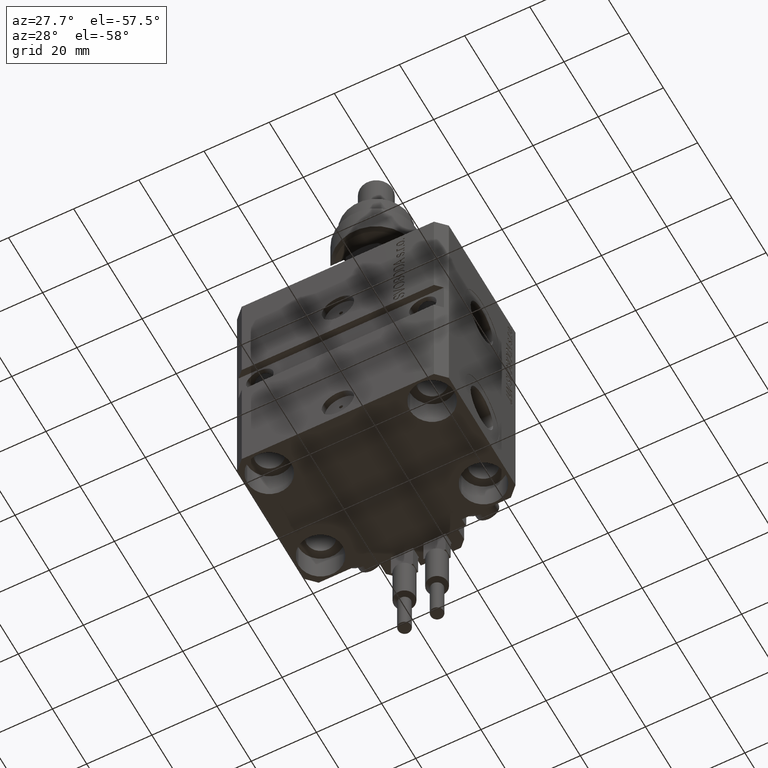
[diagram: clean part render]
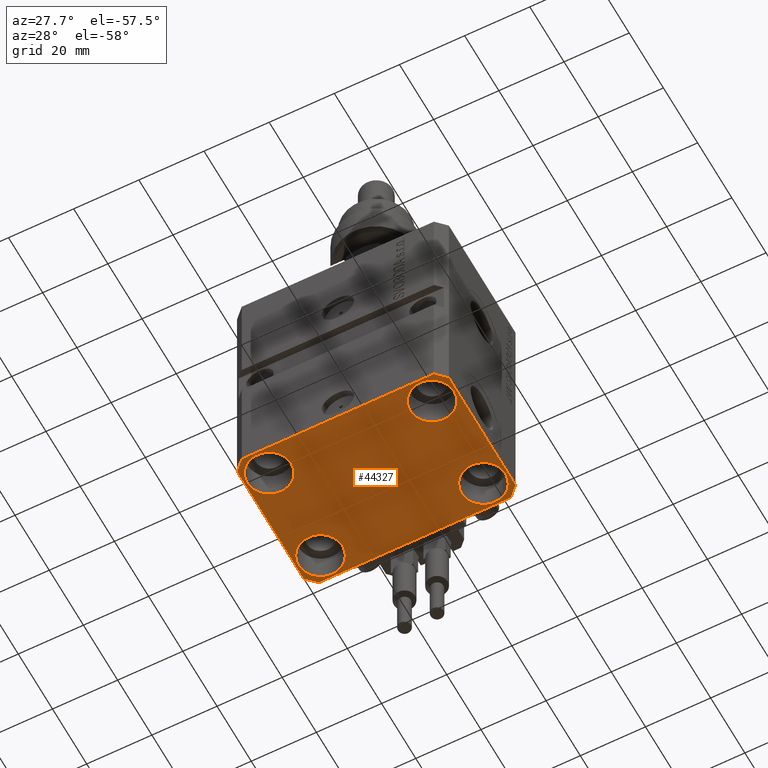
[diagram: same view with one face highlighted and labeled with its STEP entity id]
A machine part, auxiliary view. The second image highlights one B-rep face of the part: STEP entity #44327.
In plain terms, the highlighted planar face has unit normal (0, 0, 1).
Its self-contained STEP definition (entity closure, byte-faithful):
#97 = CARTESIAN_POINT ( 'NONE',  ( -29.49999999999650413, 22.49999999999949907, -77.00000000000000000 ) ) ;
#190 = VERTEX_POINT ( 'NONE', #23910 ) ;
#312 = ORIENTED_EDGE ( 'NONE', *, *, #16297, .T. ) ;
#667 = VERTEX_POINT ( 'NONE', #41809 ) ;
#1069 = EDGE_CURVE ( 'NONE', #29766, #47863, #27324, .T. ) ;
#1161 = FACE_BOUND ( 'NONE', #4159, .T. ) ;
#1185 = AXIS2_PLACEMENT_3D ( 'NONE', #48852, #5413, #33135 ) ;
#2863 = ORIENTED_EDGE ( 'NONE', *, *, #22836, .F. ) ;
#2881 = CARTESIAN_POINT ( 'NONE',  ( 29.49999999999650413, -22.49999999999949196, -77.00000000000000000 ) ) ;
#4029 = CARTESIAN_POINT ( 'NONE',  ( -29.49999999999650413, -22.49999999999949907, -77.00000000000000000 ) ) ;
#4159 = EDGE_LOOP ( 'NONE', ( #48491, #7473 ) ) ;
#4424 = ORIENTED_EDGE ( 'NONE', *, *, #6544, .F. ) ;
#4544 = VERTEX_POINT ( 'NONE', #5446 ) ;
#4622 = VERTEX_POINT ( 'NONE', #46284 ) ;
#4727 = CARTESIAN_POINT ( 'NONE',  ( -32.49999999999650413, 19.49999999999949907, -77.00000000000000000 ) ) ;
#4829 = CARTESIAN_POINT ( 'NONE',  ( -25.00000000000000355, 15.00000000000000000, -77.00000000000000000 ) ) ;
#5413 = DIRECTION ( 'NONE',  ( -0.000000000000000000, -0.000000000000000000, 1.000000000000000000 ) ) ;
#5446 = CARTESIAN_POINT ( 'NONE',  ( -31.75000000002253842, 15.00000000000000000, -77.00000000000000000 ) ) ;
#5874 = VERTEX_POINT ( 'NONE', #44387 ) ;
#6115 = VECTOR ( 'NONE', #27918, 1000.000000000000000 ) ;
#6375 = LINE ( 'NONE', #26389, #30472 ) ;
#6424 = CARTESIAN_POINT ( 'NONE',  ( 18.25000000004154543, 15.00000000000000888, -77.00000000000000000 ) ) ;
#6457 = VECTOR ( 'NONE', #23465, 1000.000000000000114 ) ;
#6544 = EDGE_CURVE ( 'NONE', #7953, #22977, #34615, .T. ) ;
#6757 = CARTESIAN_POINT ( 'NONE',  ( -18.24999999995845812, -15.00000000000000000, -77.00000000000000000 ) ) ;
#6761 = VERTEX_POINT ( 'NONE', #10192 ) ;
#6931 = CIRCLE ( 'NONE', #1185, 6.749999999977465137 ) ;
#7468 = AXIS2_PLACEMENT_3D ( 'NONE', #41468, #48685, #41964 ) ;
#7473 = ORIENTED_EDGE ( 'NONE', *, *, #45183, .T. ) ;
#7630 = CARTESIAN_POINT ( 'NONE',  ( -25.00000000000000355, 15.00000000000000000, -77.00000000000000000 ) ) ;
#7913 = ORIENTED_EDGE ( 'NONE', *, *, #1069, .F. ) ;
#7953 = VERTEX_POINT ( 'NONE', #31133 ) ;
#8506 = CIRCLE ( 'NONE', #42954, 6.749999999958452790 ) ;
#8804 = CARTESIAN_POINT ( 'NONE',  ( 31.74999999995845101, 15.00000000000000888, -77.00000000000000000 ) ) ;
#8856 = DIRECTION ( 'NONE',  ( 0.000000000000000000, 0.000000000000000000, 1.000000000000000000 ) ) ;
#8969 = EDGE_CURVE ( 'NONE', #6761, #31421, #28792, .T. ) ;
#9118 = CIRCLE ( 'NONE', #7468, 6.750000000041541881 ) ;
#9297 = CIRCLE ( 'NONE', #10141, 6.750000000022533087 ) ;
#9577 = CARTESIAN_POINT ( 'NONE',  ( -32.49999999999650413, 19.49999999999949907, -77.00000000000000000 ) ) ;
#9616 = FACE_BOUND ( 'NONE', #33229, .T. ) ;
#10141 = AXIS2_PLACEMENT_3D ( 'NONE', #4829, #15618, #28205 ) ;
#10192 = CARTESIAN_POINT ( 'NONE',  ( -31.75000000004154899, -15.00000000000000000, -77.00000000000000000 ) ) ;
#11876 = EDGE_CURVE ( 'NONE', #190, #29766, #13512, .T. ) ;
#12027 = DIRECTION ( 'NONE',  ( -0.000000000000000000, -0.000000000000000000, 1.000000000000000000 ) ) ;
#12299 = EDGE_CURVE ( 'NONE', #31421, #6761, #9118, .T. ) ;
#12491 = ORIENTED_EDGE ( 'NONE', *, *, #45289, .F. ) ;
#12571 = ORIENTED_EDGE ( 'NONE', *, *, #11876, .F. ) ;
#13183 = AXIS2_PLACEMENT_3D ( 'NONE', #17121, #28948, #33547 ) ;
#13512 = LINE ( 'NONE', #40258, #36124 ) ;
#14173 = EDGE_LOOP ( 'NONE', ( #12571, #12491, #4424, #33181, #2863, #46320, #17260, #7913 ) ) ;
#15487 = VECTOR ( 'NONE', #50332, 1000.000000000000000 ) ;
#15618 = DIRECTION ( 'NONE',  ( -0.000000000000000000, -0.000000000000000000, 1.000000000000000000 ) ) ;
#15851 = CARTESIAN_POINT ( 'NONE',  ( 29.49999999999650413, -22.49999999999949196, -77.00000000000000000 ) ) ;
#16208 = CARTESIAN_POINT ( 'NONE',  ( 18.25000000002253842, -15.00000000000000000, -77.00000000000000000 ) ) ;
#16297 = EDGE_CURVE ( 'NONE', #4622, #22002, #17473, .T. ) ;
#16566 = CARTESIAN_POINT ( 'NONE',  ( 0.000000000000000000, 0.000000000000000000, -77.00000000000000000 ) ) ;
#16572 = DIRECTION ( 'NONE',  ( -0.000000000000000000, -0.000000000000000000, 1.000000000000000000 ) ) ;
#17121 = CARTESIAN_POINT ( 'NONE',  ( -25.00000000000000355, -15.00000000000000000, -77.00000000000000000 ) ) ;
#17260 = ORIENTED_EDGE ( 'NONE', *, *, #49881, .F. ) ;
#17473 = CIRCLE ( 'NONE', #43759, 6.749999999977465137 ) ;
#17614 = EDGE_CURVE ( 'NONE', #4544, #667, #9297, .T. ) ;
#18547 = DIRECTION ( 'NONE',  ( 0.7071067811865483499, 0.7071067811865466846, 0.000000000000000000 ) ) ;
#19958 = CARTESIAN_POINT ( 'NONE',  ( 32.49999999999702993, 19.49999999999945999, -77.00000000000000000 ) ) ;
#20185 = CARTESIAN_POINT ( 'NONE',  ( 25.00000000000000355, -15.00000000000000000, -77.00000000000000000 ) ) ;
#20219 = DIRECTION ( 'NONE',  ( 1.000000000000000000, 0.000000000000000000, 0.000000000000000000 ) ) ;
#21235 = EDGE_LOOP ( 'NONE', ( #29555, #312 ) ) ;
#21538 = DIRECTION ( 'NONE',  ( 0.7071067811865474617, -0.7071067811865474617, 0.000000000000000000 ) ) ;
#22002 = VERTEX_POINT ( 'NONE', #16208 ) ;
#22836 = EDGE_CURVE ( 'NONE', #5874, #32120, #26893, .T. ) ;
#22881 = EDGE_CURVE ( 'NONE', #667, #4544, #34785, .T. ) ;
#22977 = VERTEX_POINT ( 'NONE', #19958 ) ;
#23106 = CARTESIAN_POINT ( 'NONE',  ( -29.49999999999650413, 22.49999999999949907, -77.00000000000000000 ) ) ;
#23465 = DIRECTION ( 'NONE',  ( -0.7071067811865474617, -0.7071067811865474617, 0.000000000000000000 ) ) ;
#23479 = LINE ( 'NONE', #4727, #26651 ) ;
#23910 = CARTESIAN_POINT ( 'NONE',  ( 29.49999999999707967, 22.49999999999951328, -77.00000000000000000 ) ) ;
#24052 = CIRCLE ( 'NONE', #48698, 6.749999999958452790 ) ;
#24527 = DIRECTION ( 'NONE',  ( 1.000000000000000000, 0.000000000000000000, -0.000000000000000000 ) ) ;
#25283 = PLANE ( 'NONE',  #49470 ) ;
#25529 = ORIENTED_EDGE ( 'NONE', *, *, #17614, .T. ) ;
#26021 = EDGE_LOOP ( 'NONE', ( #38340, #36004 ) ) ;
#26389 = CARTESIAN_POINT ( 'NONE',  ( -32.49999999999650413, -19.49999999999949907, -77.00000000000000000 ) ) ;
#26585 = AXIS2_PLACEMENT_3D ( 'NONE', #7630, #47220, #20219 ) ;
#26651 = VECTOR ( 'NONE', #31695, 1000.000000000000000 ) ;
#26759 = LINE ( 'NONE', #2881, #46510 ) ;
#26893 = LINE ( 'NONE', #4029, #6115 ) ;
#27191 = EDGE_CURVE ( 'NONE', #32120, #7953, #26759, .T. ) ;
#27319 = VECTOR ( 'NONE', #46613, 1000.000000000000000 ) ;
#27324 = LINE ( 'NONE', #97, #6457 ) ;
#27918 = DIRECTION ( 'NONE',  ( 1.000000000000000000, 1.176083712526788232E-16, 0.000000000000000000 ) ) ;
#28205 = DIRECTION ( 'NONE',  ( 1.000000000000000000, 0.000000000000000000, 0.000000000000000000 ) ) ;
#28275 = VERTEX_POINT ( 'NONE', #32200 ) ;
#28792 = CIRCLE ( 'NONE', #13183, 6.750000000041541881 ) ;
#28907 = CARTESIAN_POINT ( 'NONE',  ( 24.99999999999999645, 15.00000000000000888, -77.00000000000000000 ) ) ;
#28948 = DIRECTION ( 'NONE',  ( -0.000000000000000000, -0.000000000000000000, 1.000000000000000000 ) ) ;
#29555 = ORIENTED_EDGE ( 'NONE', *, *, #48385, .T. ) ;
#29766 = VERTEX_POINT ( 'NONE', #23106 ) ;
#30472 = VECTOR ( 'NONE', #21538, 1000.000000000000114 ) ;
#31133 = CARTESIAN_POINT ( 'NONE',  ( 32.49999999999651124, -19.49999999999949196, -77.00000000000000000 ) ) ;
#31421 = VERTEX_POINT ( 'NONE', #6757 ) ;
#31695 = DIRECTION ( 'NONE',  ( 0.000000000000000000, -1.000000000000000000, 0.000000000000000000 ) ) ;
#32120 = VERTEX_POINT ( 'NONE', #15851 ) ;
#32200 = CARTESIAN_POINT ( 'NONE',  ( -32.49999999999650413, -19.49999999999949907, -77.00000000000000000 ) ) ;
#32483 = FACE_OUTER_BOUND ( 'NONE', #14173, .T. ) ;
#33135 = DIRECTION ( 'NONE',  ( 1.000000000000000000, 0.000000000000000000, 0.000000000000000000 ) ) ;
#33181 = ORIENTED_EDGE ( 'NONE', *, *, #27191, .F. ) ;
#33229 = EDGE_LOOP ( 'NONE', ( #25529, #35454 ) ) ;
#33253 = DIRECTION ( 'NONE',  ( 1.000000000000000000, 0.000000000000000000, 0.000000000000000000 ) ) ;
#33547 = DIRECTION ( 'NONE',  ( 1.000000000000000000, 0.000000000000000000, 0.000000000000000000 ) ) ;
#33995 = CARTESIAN_POINT ( 'NONE',  ( 32.49999999999702993, 19.49999999999945999, -77.00000000000000000 ) ) ;
#34423 = VERTEX_POINT ( 'NONE', #6424 ) ;
#34615 = LINE ( 'NONE', #34872, #15487 ) ;
#34785 = CIRCLE ( 'NONE', #26585, 6.750000000022533087 ) ;
#34872 = CARTESIAN_POINT ( 'NONE',  ( 32.49999999999651124, -19.49999999999949196, -77.00000000000000000 ) ) ;
#35454 = ORIENTED_EDGE ( 'NONE', *, *, #22881, .T. ) ;
#36004 = ORIENTED_EDGE ( 'NONE', *, *, #12299, .T. ) ;
#36124 = VECTOR ( 'NONE', #44380, 1000.000000000000000 ) ;
#36331 = FACE_BOUND ( 'NONE', #26021, .T. ) ;
#38340 = ORIENTED_EDGE ( 'NONE', *, *, #8969, .T. ) ;
#39967 = DIRECTION ( 'NONE',  ( 1.000000000000000000, 0.000000000000000000, 0.000000000000000000 ) ) ;
#40258 = CARTESIAN_POINT ( 'NONE',  ( 29.49999999999707967, 22.49999999999951328, -77.00000000000000000 ) ) ;
#40466 = FACE_BOUND ( 'NONE', #21235, .T. ) ;
#41468 = CARTESIAN_POINT ( 'NONE',  ( -25.00000000000000355, -15.00000000000000000, -77.00000000000000000 ) ) ;
#41740 = LINE ( 'NONE', #33995, #27319 ) ;
#41809 = CARTESIAN_POINT ( 'NONE',  ( -18.24999999997747224, 15.00000000000000000, -77.00000000000000000 ) ) ;
#41964 = DIRECTION ( 'NONE',  ( 1.000000000000000000, 0.000000000000000000, 0.000000000000000000 ) ) ;
#41993 = EDGE_CURVE ( 'NONE', #28275, #5874, #6375, .T. ) ;
#42954 = AXIS2_PLACEMENT_3D ( 'NONE', #47266, #12027, #47515 ) ;
#43759 = AXIS2_PLACEMENT_3D ( 'NONE', #20185, #16572, #39967 ) ;
#44327 = ADVANCED_FACE ( 'NONE', ( #36331, #40466, #1161, #9616, #32483 ), #25283, .F. ) ;
#44380 = DIRECTION ( 'NONE',  ( -1.000000000000000000, -2.352167425053553784E-16, 0.000000000000000000 ) ) ;
#44387 = CARTESIAN_POINT ( 'NONE',  ( -29.49999999999650413, -22.49999999999949907, -77.00000000000000000 ) ) ;
#44538 = VERTEX_POINT ( 'NONE', #8804 ) ;
#45183 = EDGE_CURVE ( 'NONE', #44538, #34423, #24052, .T. ) ;
#45289 = EDGE_CURVE ( 'NONE', #22977, #190, #41740, .T. ) ;
#46247 = EDGE_CURVE ( 'NONE', #34423, #44538, #8506, .T. ) ;
#46284 = CARTESIAN_POINT ( 'NONE',  ( 31.74999999997746869, -15.00000000000000000, -77.00000000000000000 ) ) ;
#46320 = ORIENTED_EDGE ( 'NONE', *, *, #41993, .F. ) ;
#46510 = VECTOR ( 'NONE', #18547, 1000.000000000000000 ) ;
#46613 = DIRECTION ( 'NONE',  ( -0.7071067811865352493, 0.7071067811865597852, 0.000000000000000000 ) ) ;
#47220 = DIRECTION ( 'NONE',  ( -0.000000000000000000, -0.000000000000000000, 1.000000000000000000 ) ) ;
#47266 = CARTESIAN_POINT ( 'NONE',  ( 24.99999999999999645, 15.00000000000000888, -77.00000000000000000 ) ) ;
#47515 = DIRECTION ( 'NONE',  ( 1.000000000000000000, 0.000000000000000000, 0.000000000000000000 ) ) ;
#47863 = VERTEX_POINT ( 'NONE', #9577 ) ;
#48385 = EDGE_CURVE ( 'NONE', #22002, #4622, #6931, .T. ) ;
#48491 = ORIENTED_EDGE ( 'NONE', *, *, #46247, .T. ) ;
#48685 = DIRECTION ( 'NONE',  ( -0.000000000000000000, -0.000000000000000000, 1.000000000000000000 ) ) ;
#48698 = AXIS2_PLACEMENT_3D ( 'NONE', #28907, #48709, #33253 ) ;
#48709 = DIRECTION ( 'NONE',  ( -0.000000000000000000, -0.000000000000000000, 1.000000000000000000 ) ) ;
#48852 = CARTESIAN_POINT ( 'NONE',  ( 25.00000000000000355, -15.00000000000000000, -77.00000000000000000 ) ) ;
#49470 = AXIS2_PLACEMENT_3D ( 'NONE', #16566, #8856, #24527 ) ;
#49881 = EDGE_CURVE ( 'NONE', #47863, #28275, #23479, .T. ) ;
#50332 = DIRECTION ( 'NONE',  ( 1.334402673828349134E-14, 1.000000000000000000, 0.000000000000000000 ) ) ;